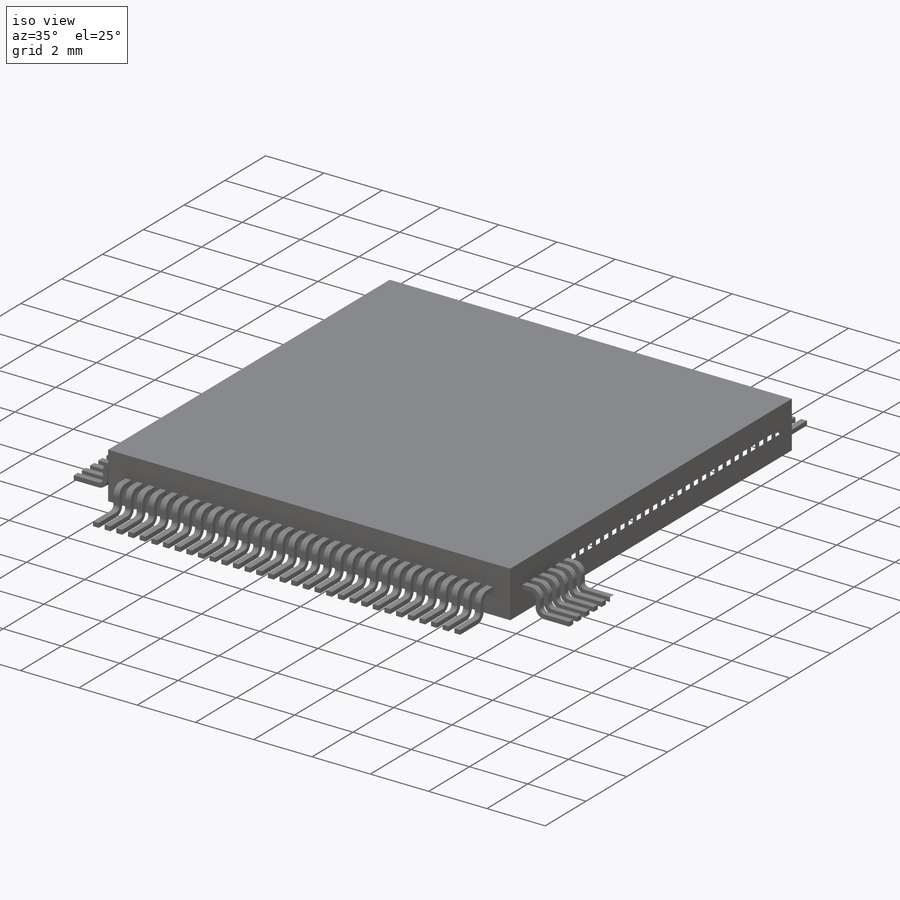
[diagram: iso view]
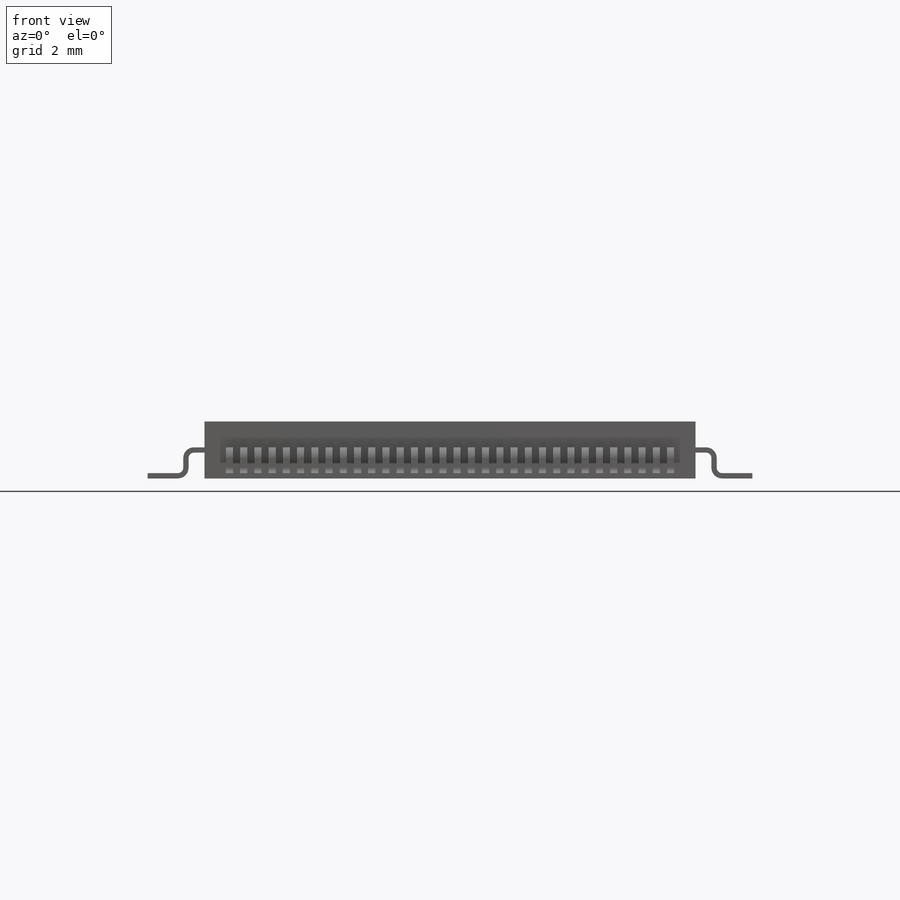
[diagram: front view]
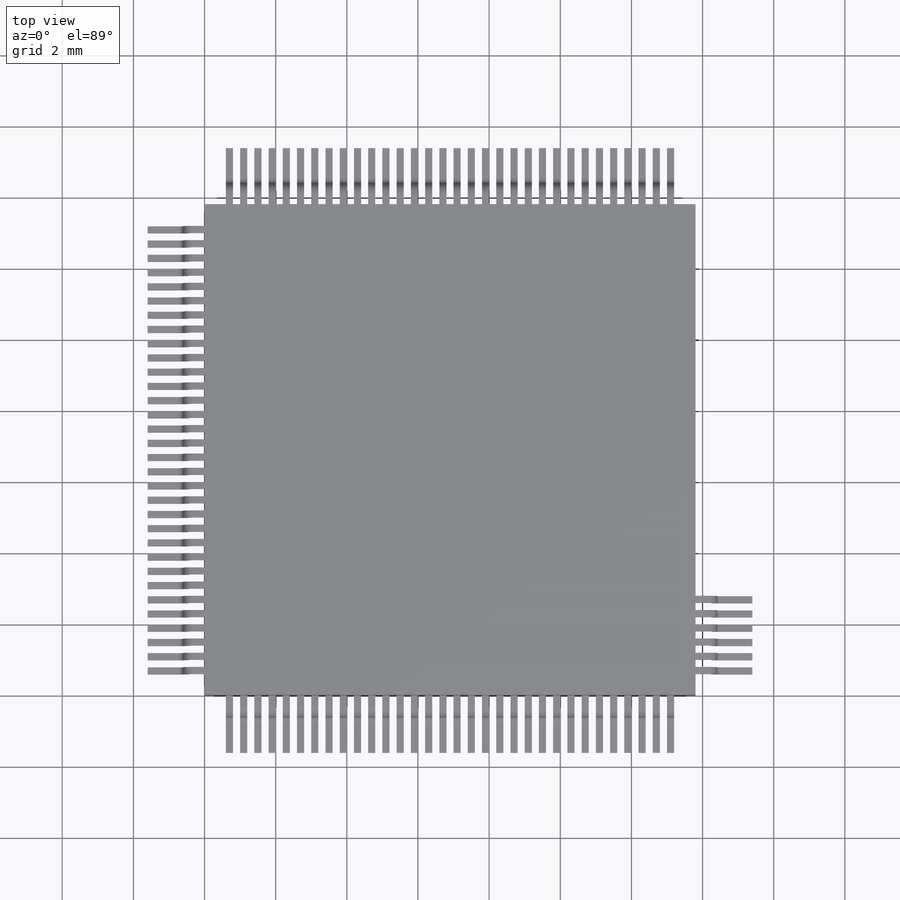
[diagram: top view]
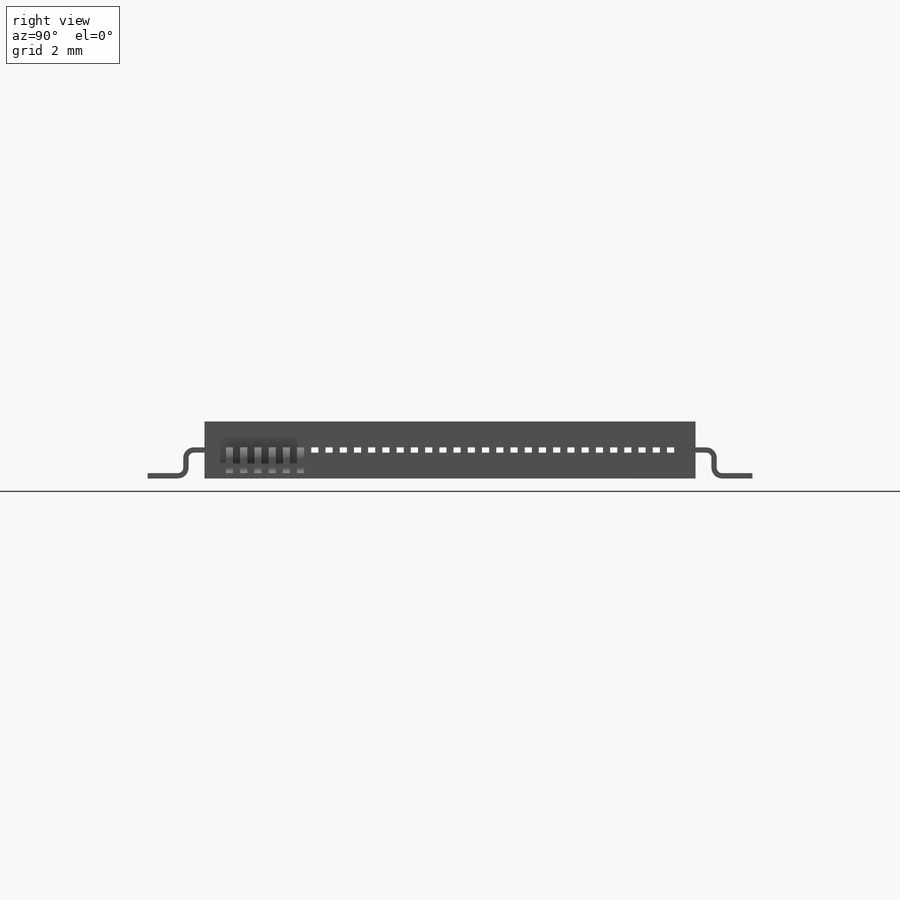
[diagram: right view]
SOLIDWORKS PART (.sldprt)
format: sldprt  version: not decoded by parser v0  size: 1,239,040 bytes
history: native  units: mm
features: sketch x3, plane x2, material x1, extrude x1, sweep x1, pattern_circular x1 (+12 scaffold rows collapsed)
feature tree (21):
  scaffold x12  (default folders/planes/origin — collapsed)
  material  "Material <not specified>"
  sketch  "Sketch1"  dims[D1=~33.427674mm D2=~33.760288mm]
  extrude  "Boss-Extrude1"  Depth=1.6mm
  plane  "Plane1"
  plane  "Plane2"
  sketch  "Sketch2"  dims[c1.D1=~0.304862mm c1.D2=~0.45347mm c2.D1=0.15mm c2.D2=0.6mm c3.D1=32.0]
  sketch  "Sketch3"  dims[D1=0.3mm]
  sweep  "Sweep1"
  pattern_circular  "CirPattern1"  Count=4 Angle=90deg
decode coverage: 5 of 6 modeling features carry decoded parameters
note: ~ marks probable driven/reference dimensions
note: suppression state not decoded; provenance and decode notes live in map.json
